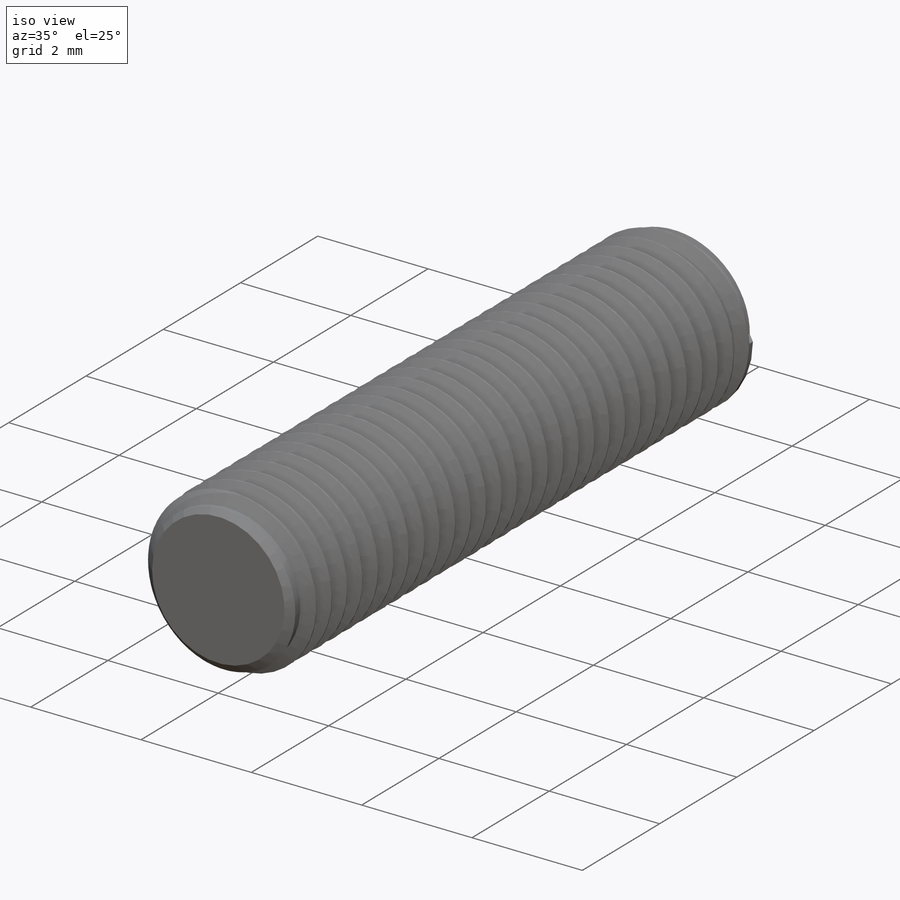
[diagram: iso view]
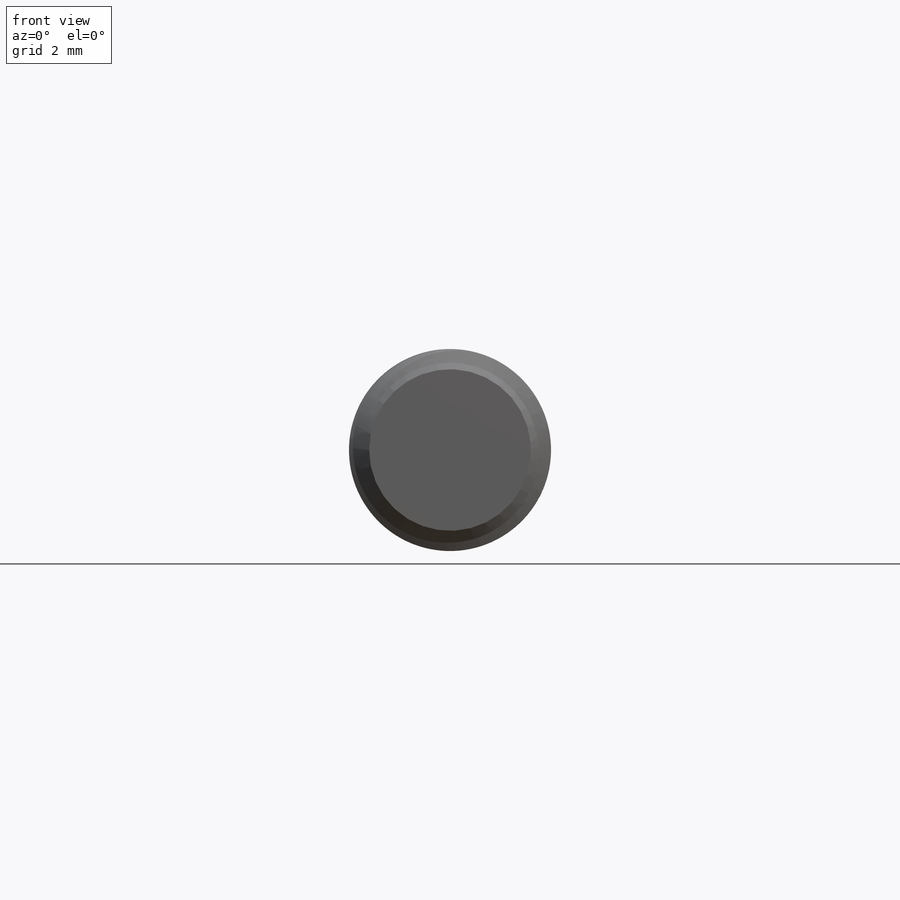
[diagram: front view]
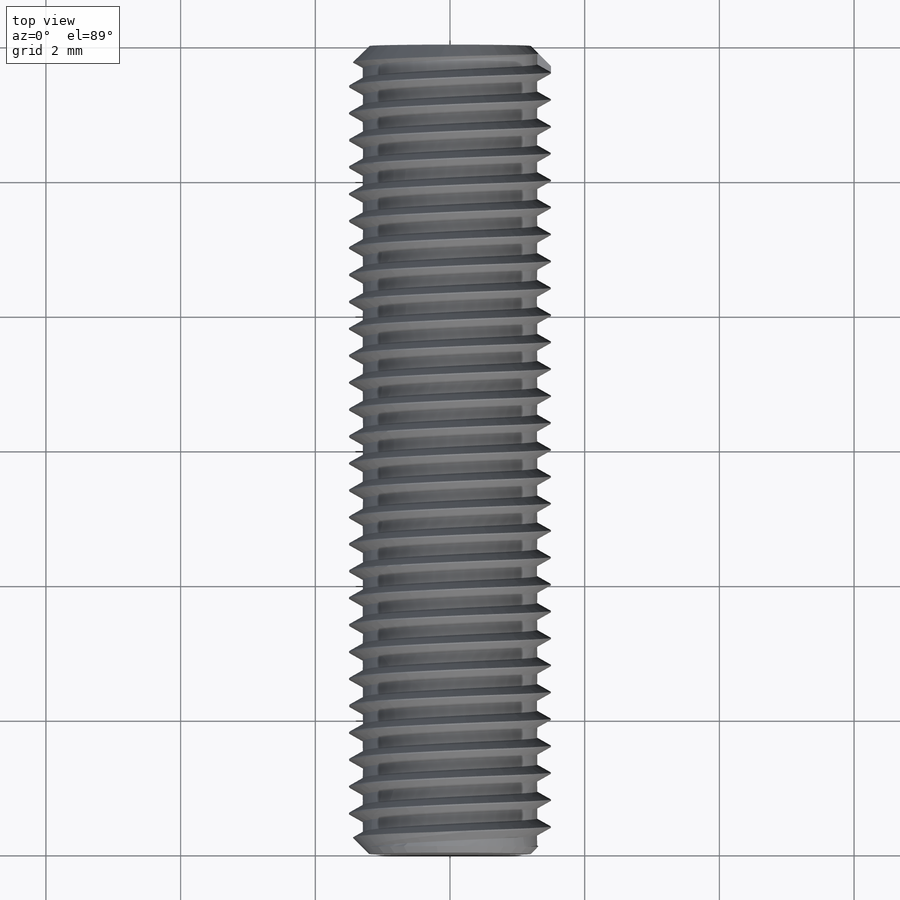
[diagram: top view]
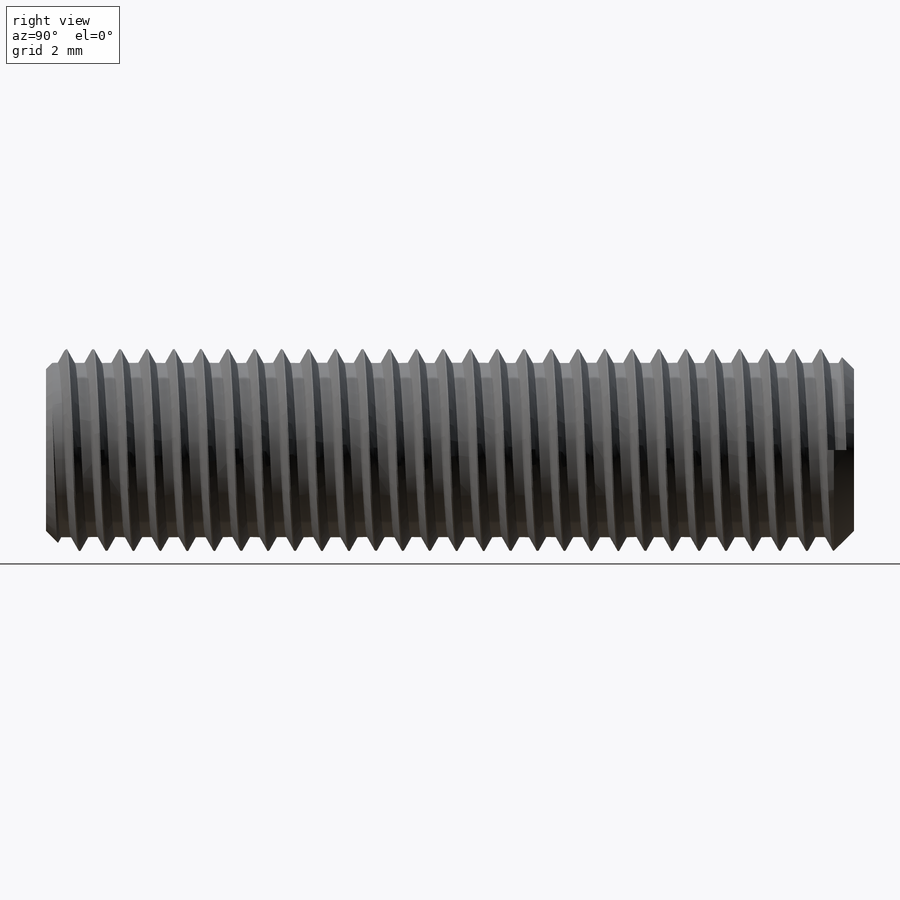
[diagram: right view]
SOLIDWORKS PART (.sldprt)
format: sldprt  version: not decoded by parser v0  size: 863,232 bytes
history: native  units: mm
features: plane x4, sketch x3, material x1, extrude x1, chamfer x1, helix x1, sweep x1 (+10 scaffold rows collapsed)
feature tree (22):
  scaffold x10  (default folders/planes/origin — collapsed)
  material  "材质 <未指定>"
  plane  "前视基准面"
  plane  "上视基准面"
  plane  "右视基准面"
  sketch  "草图1"  dims[D1=3.0mm]
  plane  "基准面1"  Offset=2.6mm
  extrude  "凸台-拉伸1"  Depth=12mm
  chamfer  "倒角1"  Distance=0.3mm Angle=45deg
  sketch  "草图7"
  helix  "螺旋线/涡状线1"  Pitch=12mm
  sketch  "草图6"  dims[c1.D1=0.3mm c1.D2=~0.286566mm c2.D2=135.0deg c3.D2=0.15mm c3.D3=0.4mm]
  sweep  "切除-扫描1"
decode coverage: 5 of 7 modeling features carry decoded parameters
note: ~ marks probable driven/reference dimensions
note: suppression state not decoded; provenance and decode notes live in map.json
